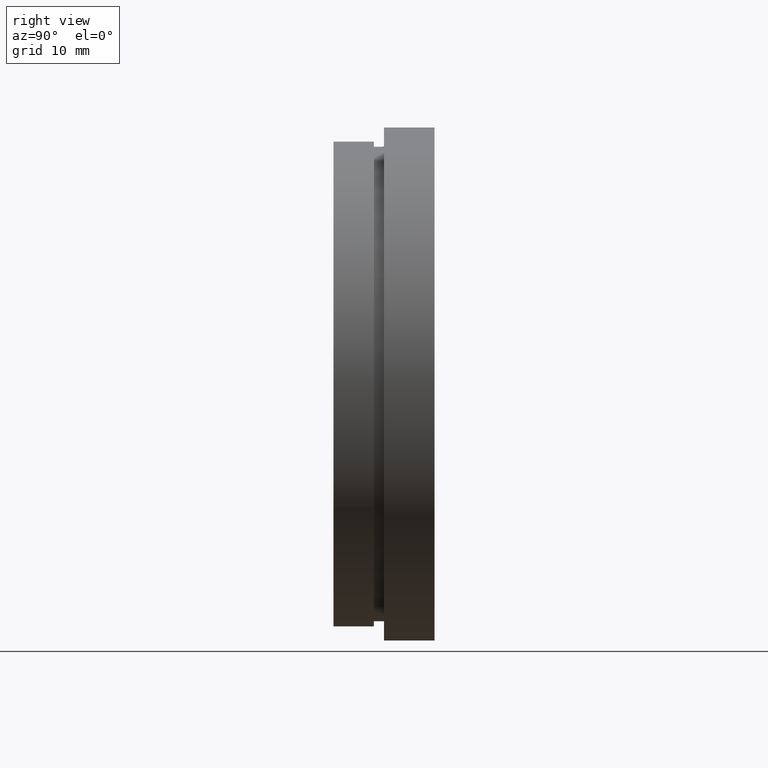
[diagram: clean part render]
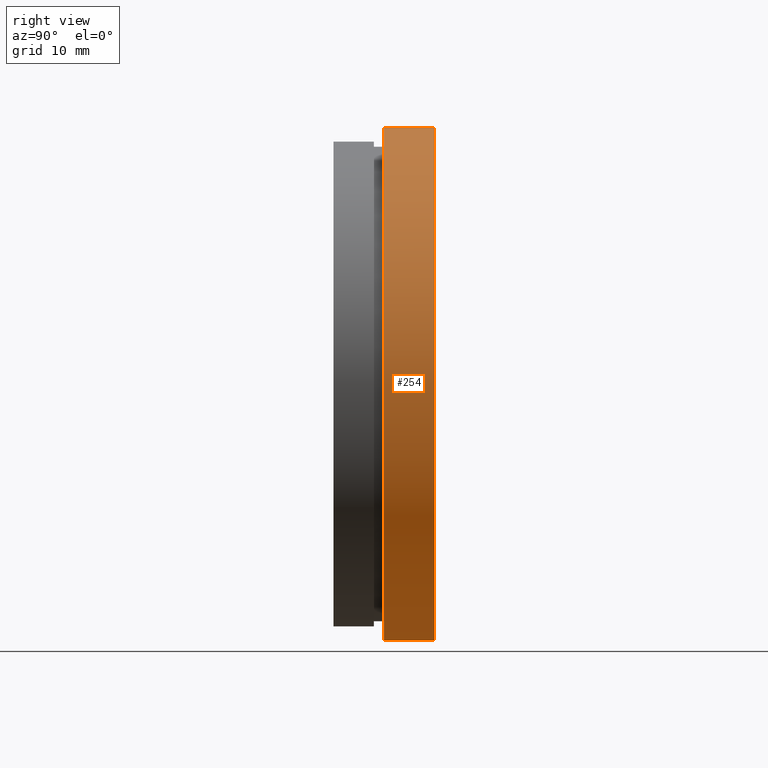
[diagram: same view with one face highlighted and labeled with its STEP entity id]
A machine part, right view. The second image highlights one B-rep face of the part: STEP entity #254.
In plain terms, the highlighted cylindrical surface (partial cylindrical patch) has radius 25.4 mm, axis along (-0, 1, -0).
Its self-contained STEP definition (entity closure, byte-faithful):
#25 = FACE_OUTER_BOUND ( 'NONE', #40, .T. ) ;
#40 = EDGE_LOOP ( 'NONE', ( #279, #221, #484, #115 ) ) ;
#42 = EDGE_CURVE ( 'NONE', #373, #94, #388, .T. ) ;
#45 = AXIS2_PLACEMENT_3D ( 'NONE', #569, #241, #324 ) ;
#73 = VERTEX_POINT ( 'NONE', #501 ) ;
#94 = VERTEX_POINT ( 'NONE', #369 ) ;
#101 = DIRECTION ( 'NONE',  ( 0.0000000000000000000, 0.0000000000000000000, 1.000000000000000000 ) ) ;
#115 = ORIENTED_EDGE ( 'NONE', *, *, #474, .F. ) ;
#116 = DIRECTION ( 'NONE',  ( -0.0000000000000000000, 1.000000000000000000, -0.0000000000000000000 ) ) ;
#199 = DIRECTION ( 'NONE',  ( -0.0000000000000000000, 1.000000000000000000, -0.0000000000000000000 ) ) ;
#217 = CARTESIAN_POINT ( 'NONE',  ( 0.0000000000000000000, 9.999999999999998200, 25.39999999999999900 ) ) ;
#221 = ORIENTED_EDGE ( 'NONE', *, *, #597, .T. ) ;
#241 = DIRECTION ( 'NONE',  ( -0.0000000000000000000, 1.000000000000000000, -0.0000000000000000000 ) ) ;
#254 = ADVANCED_FACE ( 'NONE', ( #25 ), #460, .T. ) ;
#263 = DIRECTION ( 'NONE',  ( -0.0000000000000000000, 1.000000000000000000, -0.0000000000000000000 ) ) ;
#279 = ORIENTED_EDGE ( 'NONE', *, *, #562, .T. ) ;
#294 = CARTESIAN_POINT ( 'NONE',  ( 3.110602869834276900E-015, 13.74468085106383300, -25.39999999999999900 ) ) ;
#299 = CIRCLE ( 'NONE', #591, 25.39999999999999900 ) ;
#324 = DIRECTION ( 'NONE',  ( 0.0000000000000000000, 0.0000000000000000000, 1.000000000000000000 ) ) ;
#369 = CARTESIAN_POINT ( 'NONE',  ( 3.110602869834276900E-015, 9.999999999999998200, -25.39999999999999900 ) ) ;
#373 = VERTEX_POINT ( 'NONE', #217 ) ;
#388 = CIRCLE ( 'NONE', #521, 25.39999999999999900 ) ;
#396 = CARTESIAN_POINT ( 'NONE',  ( 0.0000000000000000000, 13.74468085106383300, 25.39999999999999900 ) ) ;
#402 = VECTOR ( 'NONE', #263, 1000.000000000000000 ) ;
#403 = CARTESIAN_POINT ( 'NONE',  ( 0.0000000000000000000, 5.000000000000000900, 25.39999999999999900 ) ) ;
#420 = VERTEX_POINT ( 'NONE', #403 ) ;
#422 = LINE ( 'NONE', #396, #402 ) ;
#430 = DIRECTION ( 'NONE',  ( -0.0000000000000000000, 1.000000000000000000, -0.0000000000000000000 ) ) ;
#446 = CARTESIAN_POINT ( 'NONE',  ( 0.0000000000000000000, 9.999999999999998200, 0.0000000000000000000 ) ) ;
#460 = CYLINDRICAL_SURFACE ( 'NONE', #45, 25.39999999999999900 ) ;
#474 = EDGE_CURVE ( 'NONE', #420, #373, #422, .T. ) ;
#482 = DIRECTION ( 'NONE',  ( 0.0000000000000000000, 0.0000000000000000000, 1.000000000000000000 ) ) ;
#484 = ORIENTED_EDGE ( 'NONE', *, *, #42, .F. ) ;
#501 = CARTESIAN_POINT ( 'NONE',  ( 3.110602869834276900E-015, 5.000000000000000900, -25.39999999999999900 ) ) ;
#521 = AXIS2_PLACEMENT_3D ( 'NONE', #446, #116, #101 ) ;
#530 = CARTESIAN_POINT ( 'NONE',  ( 0.0000000000000000000, 5.000000000000000900, 0.0000000000000000000 ) ) ;
#562 = EDGE_CURVE ( 'NONE', #420, #73, #299, .T. ) ;
#566 = LINE ( 'NONE', #294, #601 ) ;
#569 = CARTESIAN_POINT ( 'NONE',  ( 0.0000000000000000000, 13.74468085106383300, 0.0000000000000000000 ) ) ;
#591 = AXIS2_PLACEMENT_3D ( 'NONE', #530, #199, #482 ) ;
#597 = EDGE_CURVE ( 'NONE', #73, #94, #566, .T. ) ;
#601 = VECTOR ( 'NONE', #430, 1000.000000000000000 ) ;